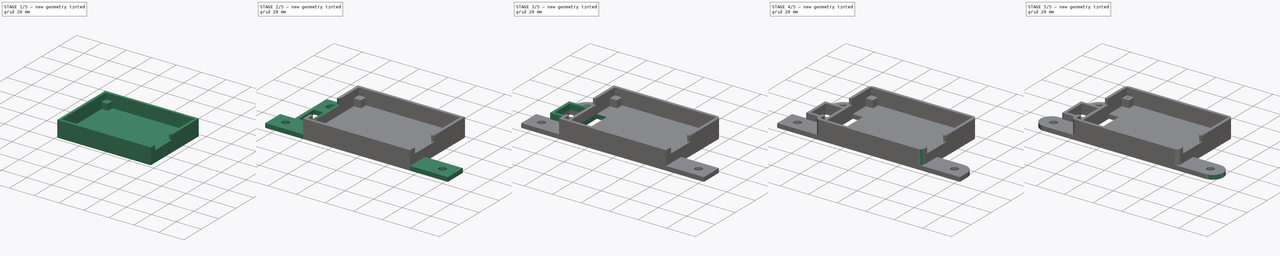
[diagram: build sequence overview — one tinted view per stage of 5, left to right]
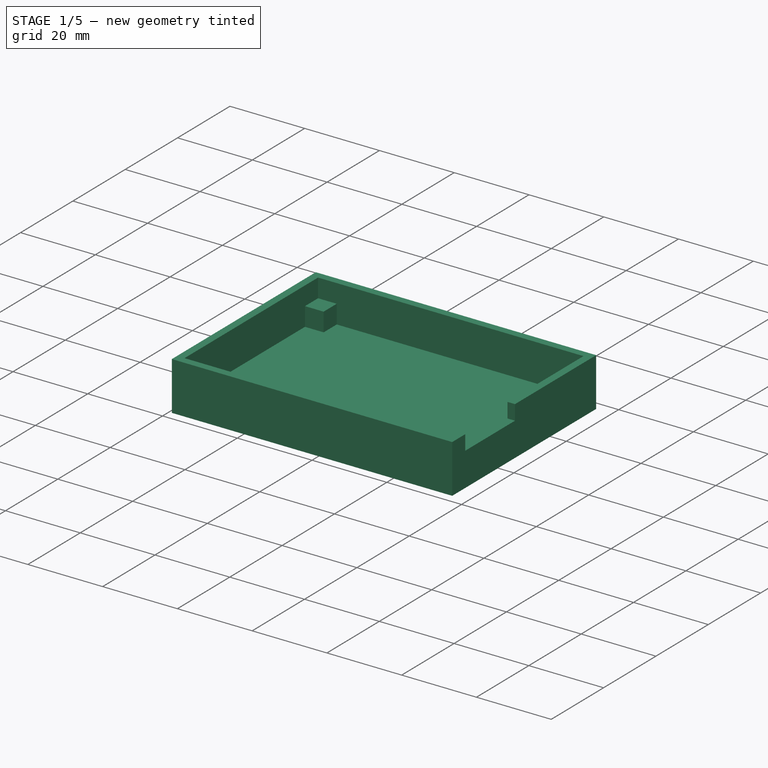
[diagram: stage 1 of 5 — iso view after this stage's code; geometry added in this stage tinted green]
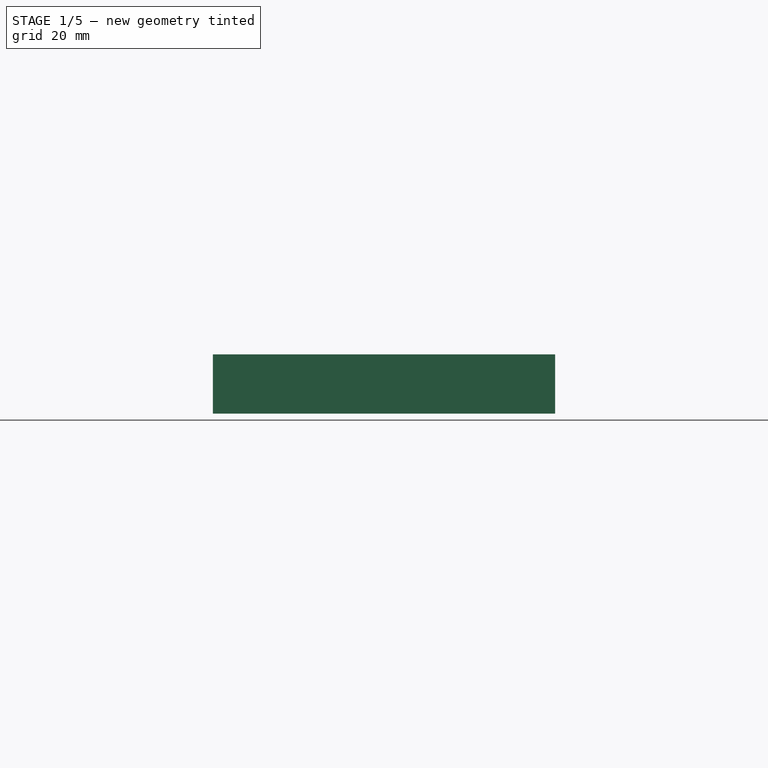
[diagram: stage 1 of 5 — front view after this stage's code; geometry added in this stage tinted green]
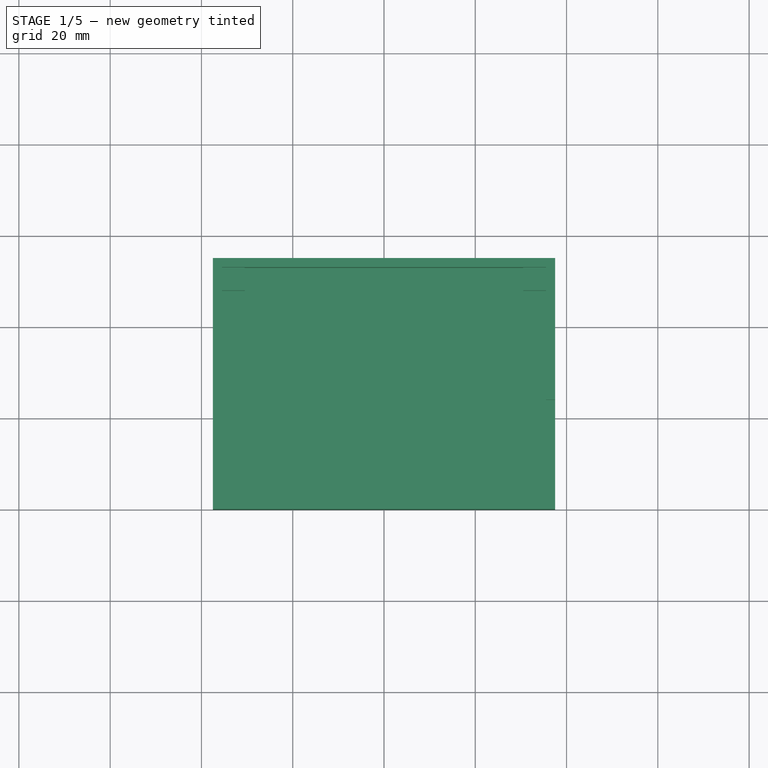
[diagram: stage 1 of 5 — top view after this stage's code; geometry added in this stage tinted green]
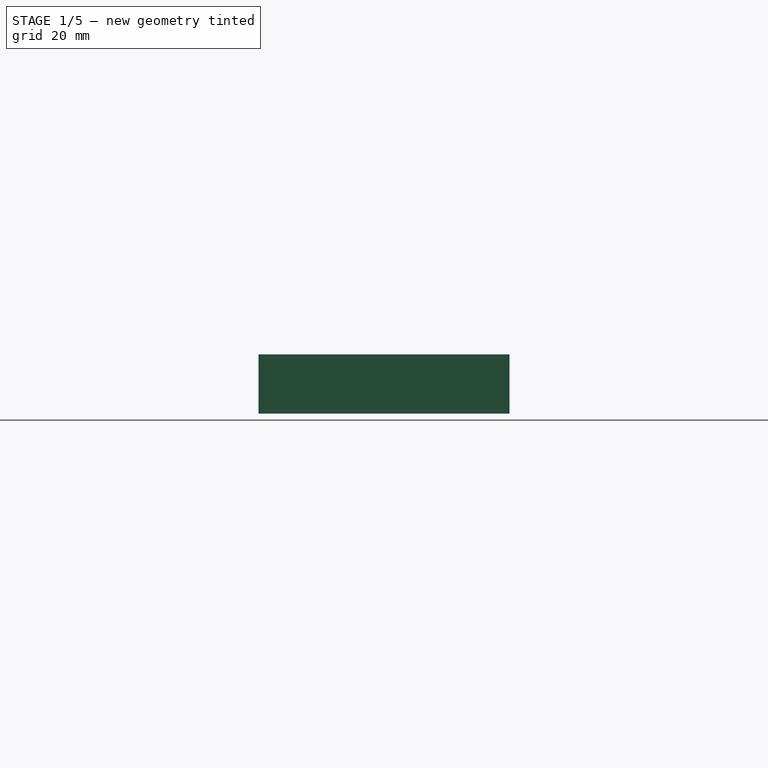
[diagram: stage 1 of 5 — right view after this stage's code; geometry added in this stage tinted green]
FCSTD DOCUMENT  (FreeCAD 0.18R16117 (Git))
Label: TCM2 - Scatola Circuiti
License: All rights reserved
LicenseURL: http://en.wikipedia.org/wiki/All_rights_reserved
objects: Sketcher::SketchObject×11, PartDesign::Fillet×9, PartDesign::Pad×6, PartDesign::Pocket×5, PartDesign::Body×1
note: 43 computed .brp shape members not serialized (recipe doc carries the construction recipe); baked Part::Feature solids carry a one-line shape summary decoded from their .brp

FEATURE [Sketcher::SketchObject] Sketch
  MapMode = 5
  Support = -> [XY_Plane]
  sketch-geometry (4):
    g0: LineSegment StartX=-37.5 StartY=55 StartZ=0 EndX=37.5 EndY=55 EndZ=0
    g1: LineSegment StartX=37.5 StartY=55 StartZ=0 EndX=37.5 EndY=0 EndZ=0
    g2: LineSegment StartX=37.5 StartY=0 StartZ=0 EndX=-37.5 EndY=0 EndZ=0
    g3: LineSegment StartX=-37.5 StartY=0 StartZ=0 EndX=-37.5 EndY=55 EndZ=0
  constraints (12):
    c: Coincident(g0,g1)
    c: Coincident(g1,g2)
    c: Coincident(g2,g3)
    c: Coincident(g3,g0)
    c: Horizontal(g0)
    c: Horizontal(g2)
    c: Vertical(g1)
    c: Vertical(g3)
    c: Distance(g2) = 75
    c: Distance(g1) = 55
    c: PointOnObject(g1,g-1)
    c: DistanceX(g2,g-1) = 37.5
FEATURE [PartDesign::Pad] Pad
  Length = 3
  Length2 = 100
  Profile = -> Sketch
  Type = 0
FEATURE [Sketcher::SketchObject] Sketch001
  MapMode = 5
  Placement = pos=(0,0,3) rot=(0,0,1;0rad)
  Support = -> [Pad]
  sketch-geometry (8):
    g0: LineSegment StartX=-37.5 StartY=55 StartZ=0 EndX=37.5 EndY=55 EndZ=0
    g1: LineSegment StartX=37.5 StartY=55 StartZ=0 EndX=37.5 EndY=0 EndZ=0
    g2: LineSegment StartX=37.5 StartY=0 StartZ=0 EndX=-37.5 EndY=0 EndZ=0
    g3: LineSegment StartX=-37.5 StartY=0 StartZ=0 EndX=-37.5 EndY=55 EndZ=0
    g4: LineSegment StartX=-35.5 StartY=53 StartZ=0 EndX=35.5 EndY=53 EndZ=0
    g5: LineSegment StartX=35.5 StartY=53 StartZ=0 EndX=35.5 EndY=2 EndZ=0
    g6: LineSegment StartX=35.5 StartY=2 StartZ=0 EndX=-35.5 EndY=2 EndZ=0
    g7: LineSegment StartX=-35.5 StartY=2 StartZ=0 EndX=-35.5 EndY=53 EndZ=0
  constraints (24):
    c: Coincident(g0,g1)
    c: Coincident(g1,g2)
    c: Coincident(g2,g3)
    c: Coincident(g3,g0)
    c: Horizontal(g0)
    c: Horizontal(g2)
    c: Vertical(g1)
    c: Vertical(g3)
    c: Coincident(g4,g5)
    c: Coincident(g5,g6)
    c: Coincident(g6,g7)
    c: Coincident(g7,g4)
    c: Horizontal(g4)
    c: Horizontal(g6)
    c: Vertical(g5)
    c: Vertical(g7)
    c: Distance(g1) = 55
    c: Distance(g2) = 75
    c: PointOnObject(g1,g-1)
    c: DistanceX(g2,g-1) = 37.5
    c: Distance(g6) = 71
    c: Distance(g5) = 51
    c: DistanceY(g1,g5) = 2
    c: DistanceX(g2,g6) = 2
FEATURE [PartDesign::Pad] Pad001
  BaseFeature = -> Pad
  Length = 10
  Length2 = 100
  Profile = -> Sketch001
  Type = 0
FEATURE [Sketcher::SketchObject] Sketch002
  MapMode = 5
  Placement = pos=(0,0,3) rot=(0,0,1;0rad)
  Support = -> [Pad001]
  sketch-geometry (16):
    g0: LineSegment StartX=-35.5 StartY=48 StartZ=0 EndX=-30.5 EndY=48 EndZ=0
    g1: LineSegment StartX=-30.5 StartY=48 StartZ=0 EndX=-30.5 EndY=53 EndZ=0
    g2: LineSegment StartX=-30.5 StartY=53 StartZ=0 EndX=-35.5 EndY=53 EndZ=0
    g3: LineSegment StartX=-35.5 StartY=53 StartZ=0 EndX=-35.5 EndY=48 EndZ=0
    g4: LineSegment StartX=30.5 StartY=48 StartZ=0 EndX=35.5 EndY=48 EndZ=0
    g5: LineSegment StartX=35.5 StartY=48 StartZ=0 EndX=35.5 EndY=53 EndZ=0
    g6: LineSegment StartX=35.5 StartY=53 StartZ=0 EndX=30.5 EndY=53 EndZ=0
    g7: LineSegment StartX=30.5 StartY=53 StartZ=0 EndX=30.5 EndY=48 EndZ=0
    g8: LineSegment StartX=30.5 StartY=2 StartZ=0 EndX=35.5 EndY=2 EndZ=0
    g9: LineSegment StartX=35.5 StartY=2 StartZ=0 EndX=35.5 EndY=7 EndZ=0
    g10: LineSegment StartX=35.5 StartY=7 StartZ=0 EndX=30.5 EndY=7 EndZ=0
    g11: LineSegment StartX=30.5 StartY=7 StartZ=0 EndX=30.5 EndY=2 EndZ=0
    g12: LineSegment StartX=-35.5 StartY=2 StartZ=0 EndX=-30.5 EndY=2 EndZ=0
    g13: LineSegment StartX=-30.5 StartY=2 StartZ=0 EndX=-30.5 EndY=7 EndZ=0
    g14: LineSegment StartX=-30.5 StartY=7 StartZ=0 EndX=-35.5 EndY=7 EndZ=0
    g15: LineSegment StartX=-35.5 StartY=7 StartZ=0 EndX=-35.5 EndY=2 EndZ=0
  constraints (48):
    c: Coincident(g0,g1)
    c: Coincident(g1,g2)
    c: Coincident(g2,g3)
    c: Coincident(g3,g0)
    c: Horizontal(g0)
    c: Horizontal(g2)
    c: Vertical(g1)
    c: Vertical(g3)
    c: Coincident(g4,g5)
    c: Coincident(g5,g6)
    c: Coincident(g6,g7)
    c: Coincident(g7,g4)
    c: Horizontal(g4)
    c: Horizontal(g6)
    c: Vertical(g5)
    c: Vertical(g7)
    c: Coincident(g8,g9)
    c: Coincident(g9,g10)
    c: Coincident(g10,g11)
    c: Coincident(g11,g8)
    c: Horizontal(g8)
    c: Horizontal(g10)
    c: Vertical(g9)
    c: Vertical(g11)
    c: Coincident(g12,g13)
    c: Coincident(g13,g14)
    c: Coincident(g14,g15)
    c: Coincident(g15,g12)
    c: Horizontal(g12)
    c: Horizontal(g14)
    c: Vertical(g13)
    c: Vertical(g15)
    c: Distance(g1) = 5
    c: Distance(g0) = 5
    c: Distance(g4) = 5
    c: Distance(g5) = 5
    c: Distance(g10) = 5
    c: Distance(g9) = 5
    c: Distance(g14) = 5
    c: Distance(g13) = 5
    c: DistanceX(g12,g8) = 71
    c: DistanceX(g2,g5) = 71
    c: DistanceY(g8,g5) = 51
    c: DistanceY(g12,g1) = 51
    c: DistanceX(g0,g-1) = 35.5
    c: DistanceX(g14,g-1) = 35.5
    c: DistanceY(g-1,g12) = 2
    c: DistanceY(g-1,g8) = 2
FEATURE [PartDesign::Pad] Pad002
  BaseFeature = -> Pad001
  Length = 5
  Length2 = 100
  Profile = -> Sketch002
  Type = 0
FEATURE [Sketcher::SketchObject] Sketch003
  MapMode = 5
  Placement = pos=(0,0,13) rot=(0,0,1;0rad)
  Support = -> [Pad002]
  sketch-geometry (4):
    g0: LineSegment StartX=35.5 StartY=24 StartZ=0 EndX=37.5 EndY=24 EndZ=0
    g1: LineSegment StartX=37.5 StartY=24 StartZ=0 EndX=37.5 EndY=5 EndZ=0
    g2: LineSegment StartX=37.5 StartY=5 StartZ=0 EndX=35.5 EndY=5 EndZ=0
    g3: LineSegment StartX=35.5 StartY=5 StartZ=0 EndX=35.5 EndY=24 EndZ=0
  constraints (12):
    c: Coincident(g0,g1)
    c: Coincident(g1,g2)
    c: Coincident(g2,g3)
    c: Coincident(g3,g0)
    c: Horizontal(g0)
    c: Horizontal(g2)
    c: Vertical(g1)
    c: Vertical(g3)
    c: Distance(g2) = 2
    c: Distance(g1) = 19
    c: DistanceX(g-1,g2) = 35.5
    c: DistanceY(g-1,g2) = 5
FEATURE [PartDesign::Pocket] Pocket
  BaseFeature = -> Pad002
  Length = 4
  Length2 = 100
  Profile = -> Sketch003
  Type = 0
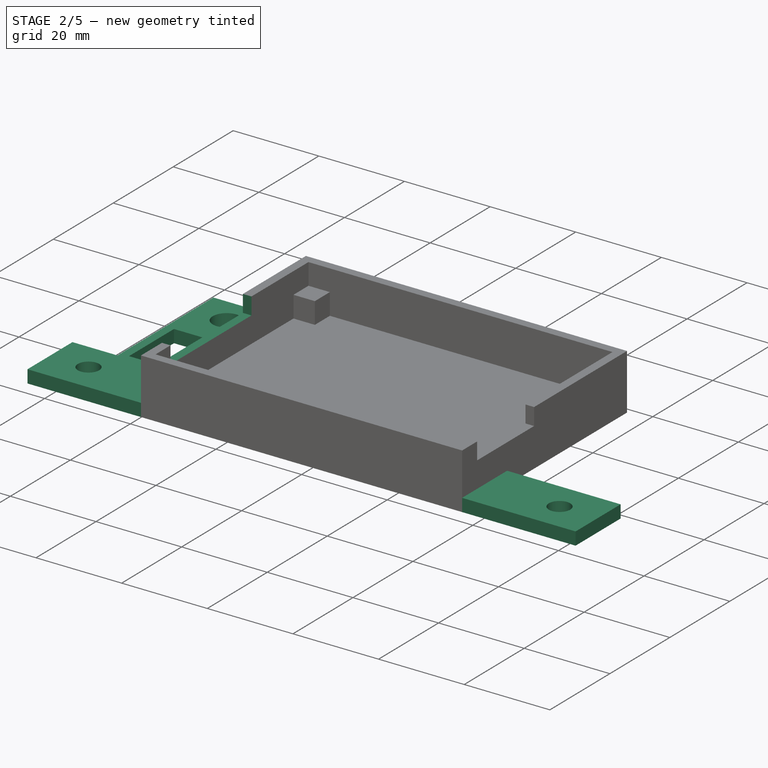
[diagram: stage 2 of 5 — iso view after this stage's code; geometry added in this stage tinted green]
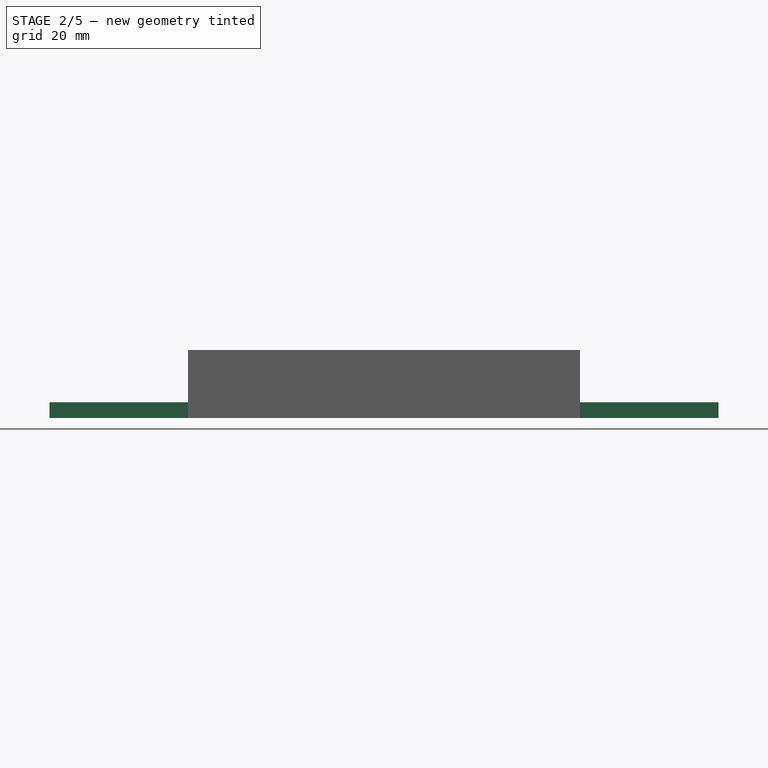
[diagram: stage 2 of 5 — front view after this stage's code; geometry added in this stage tinted green]
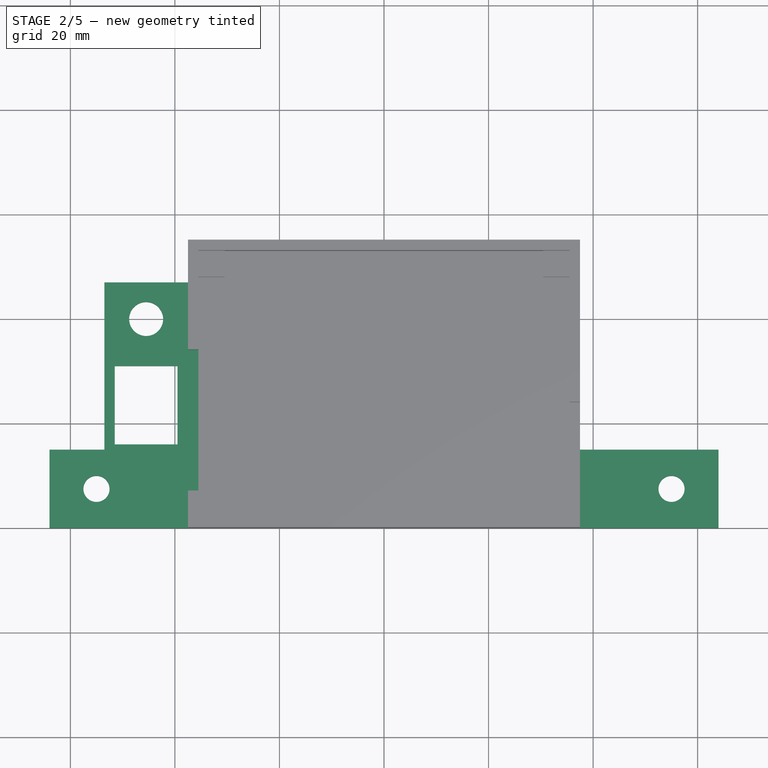
[diagram: stage 2 of 5 — top view after this stage's code; geometry added in this stage tinted green]
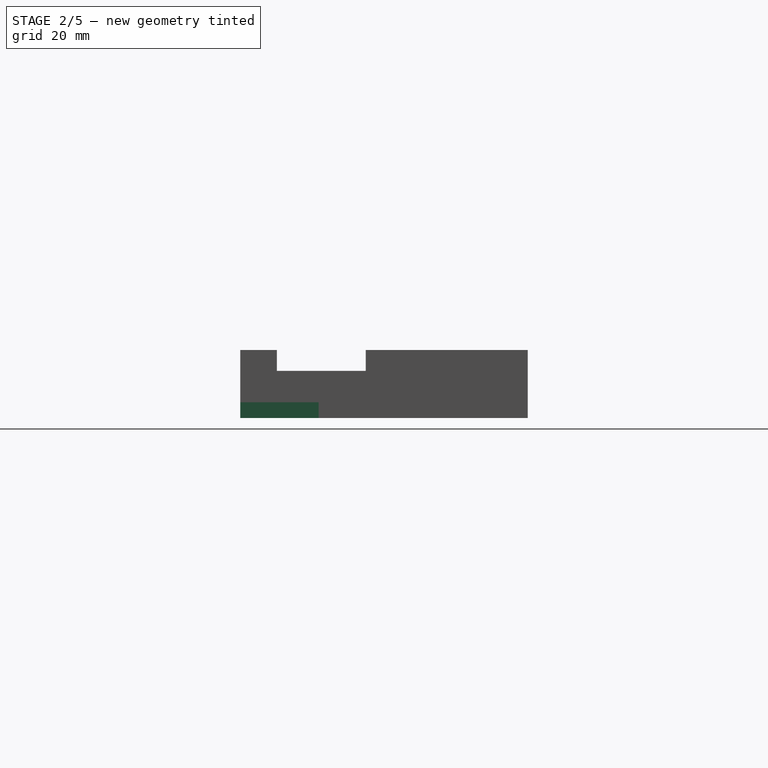
[diagram: stage 2 of 5 — right view after this stage's code; geometry added in this stage tinted green]
FEATURE [Sketcher::SketchObject] Sketch004
  MapMode = 5
  Placement = pos=(0,0,13) rot=(0,0,1;0rad)
  Support = -> [Pocket]
  sketch-geometry (4):
    g0: LineSegment StartX=-35.5 StartY=34 StartZ=0 EndX=-37.5 EndY=34 EndZ=0
    g1: LineSegment StartX=-37.5 StartY=34 StartZ=0 EndX=-37.5 EndY=7 EndZ=0
    g2: LineSegment StartX=-37.5 StartY=7 StartZ=0 EndX=-35.5 EndY=7 EndZ=0
    g3: LineSegment StartX=-35.5 StartY=7 StartZ=0 EndX=-35.5 EndY=34 EndZ=0
  constraints (12):
    c: Coincident(g0,g1)
    c: Coincident(g1,g2)
    c: Coincident(g2,g3)
    c: Coincident(g3,g0)
    c: Horizontal(g0)
    c: Horizontal(g2)
    c: Vertical(g1)
    c: Vertical(g3)
    c: Distance(g2) = 2
    c: Distance(g1) = 27
    c: DistanceX(g0,g-1) = 37.5
    c: DistanceY(g-1,g1) = 7
FEATURE [PartDesign::Pocket] Pocket001
  BaseFeature = -> Pocket
  Length = 4
  Length2 = 100
  Profile = -> Sketch004
  Type = 0
FEATURE [Sketcher::SketchObject] Sketch005
  MapMode = 5
  Placement = pos=(0,0,0) rot=(1,0,0;3.14159rad)
  Support = -> [Pocket001]
  sketch-geometry (4):
    g0: LineSegment StartX=-64 StartY=0 StartZ=0 EndX=64 EndY=0 EndZ=0
    g1: LineSegment StartX=64 StartY=0 StartZ=0 EndX=64 EndY=-15 EndZ=0
    g2: LineSegment StartX=64 StartY=-15 StartZ=0 EndX=-64 EndY=-15 EndZ=0
    g3: LineSegment StartX=-64 StartY=-15 StartZ=0 EndX=-64 EndY=0 EndZ=0
  constraints (12):
    c: Coincident(g0,g1)
    c: Coincident(g1,g2)
    c: Coincident(g2,g3)
    c: Coincident(g3,g0)
    c: Horizontal(g0)
    c: Horizontal(g2)
    c: Vertical(g1)
    c: Vertical(g3)
    c: PointOnObject(g0,g-1)
    c: Distance(g0) = 128
    c: DistanceX(g0,g-1) = 64
    c: Distance(g3) = 15
FEATURE [PartDesign::Pad] Pad003
  BaseFeature = -> Pocket001
  Length = 3
  Length2 = 100
  Profile = -> Sketch005
  Reversed = true
  Type = 0
FEATURE [Sketcher::SketchObject] Sketch006
  MapMode = 5
  Placement = pos=(0,0,3) rot=(0,0,1;0rad)
  Support = -> [Pad003]
  sketch-geometry (2):
    g0: Circle CenterX=-55 CenterY=7.5 CenterZ=0 NormalX=0 NormalY=0 NormalZ=1 AngleXU=0 Radius=2.5
    g1: Circle CenterX=55 CenterY=7.5 CenterZ=0 NormalX=0 NormalY=0 NormalZ=1 AngleXU=0 Radius=2.5
  constraints (6):
    c: DistanceX(g0,g1) = 110
    c: DistanceX(g0,g-1) = 55
    c: Radius(g0) = 2.5
    c: Radius(g1) = 2.5
    c: DistanceY(g-1,g0) = 7.5
    c: DistanceY(g-1,g1) = 7.5
FEATURE [PartDesign::Pocket] Pocket002
  BaseFeature = -> Pad003
  Length = 3
  Length2 = 100
  Profile = -> Sketch006
  Type = 0
FEATURE [Sketcher::SketchObject] Sketch007
  MapMode = 5
  Placement = pos=(0,0,0) rot=(1,0,0;3.14159rad)
  Support = -> [Pocket002]
  sketch-geometry (9):
    g0: LineSegment StartX=-53.5 StartY=-15 StartZ=0 EndX=-37.5 EndY=-15 EndZ=0
    g1: LineSegment StartX=-37.5 StartY=-15 StartZ=0 EndX=-37.5 EndY=-47 EndZ=0
    g2: LineSegment StartX=-37.5 StartY=-47 StartZ=0 EndX=-53.5 EndY=-47 EndZ=0
    g3: LineSegment StartX=-53.5 StartY=-47 StartZ=0 EndX=-53.5 EndY=-15 EndZ=0
    g4: LineSegment StartX=-51.5 StartY=-16 StartZ=0 EndX=-39.5 EndY=-16 EndZ=0
    g5: LineSegment StartX=-39.5 StartY=-16 StartZ=0 EndX=-39.5 EndY=-31 EndZ=0
    g6: LineSegment StartX=-39.5 StartY=-31 StartZ=0 EndX=-51.5 EndY=-31 EndZ=0
    g7: LineSegment StartX=-51.5 StartY=-31 StartZ=0 EndX=-51.5 EndY=-16 EndZ=0
    g8: Circle CenterX=-45.5 CenterY=-40 CenterZ=0 NormalX=0 NormalY=0 NormalZ=1 AngleXU=0 Radius=3.25
  constraints (27):
    c: Coincident(g0,g1)
    c: Coincident(g1,g2)
    c: Coincident(g2,g3)
    c: Coincident(g3,g0)
    c: Horizontal(g0)
    c: Horizontal(g2)
    c: Vertical(g1)
    c: Vertical(g3)
    c: Distance(g0) = 16
    c: Distance(g1) = 32
    c: Coincident(g4,g5)
    c: Coincident(g5,g6)
    c: Coincident(g6,g7)
    c: Coincident(g7,g4)
    c: Horizontal(g4)
    c: Horizontal(g6)
    c: Vertical(g5)
    c: Vertical(g7)
    c: Distance(g4) = 12
    c: Distance(g5) = 15
    c: DistanceX(g0,g4) = 2
    c: DistanceY(g4,g0) = 1
    c: Diameter(g8) = 6.5
    c: DistanceX(g0,g8) = 8
    c: DistanceY(g8,g0) = 25
    c: DistanceX(g0,g-1) = 37.5
    c: DistanceY(g0,g-1) = 15
FEATURE [PartDesign::Pad] Pad004
  BaseFeature = -> Pocket002
  Length = 3
  Length2 = 100
  Profile = -> Sketch007
  Reversed = true
  Type = 0
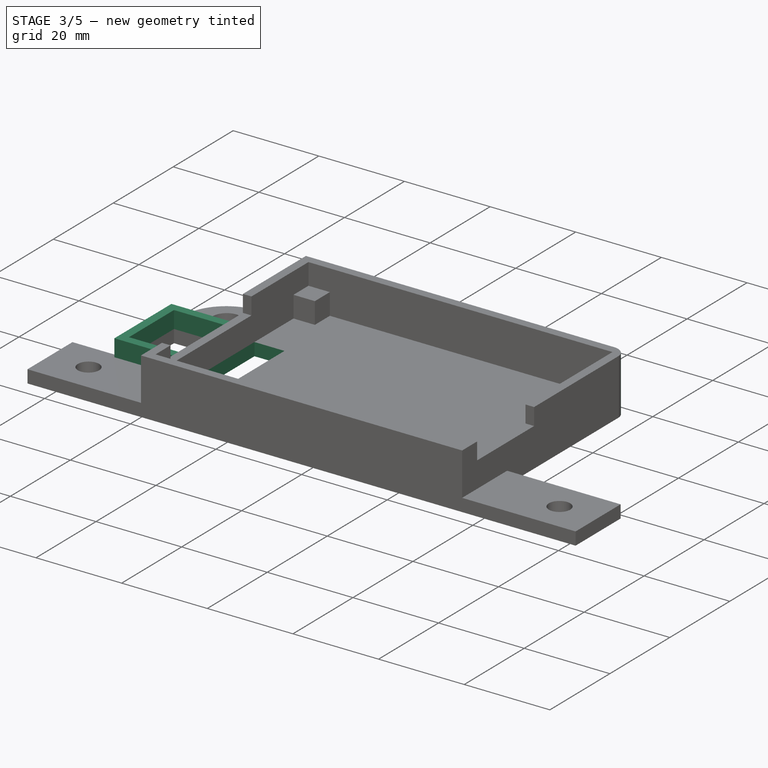
[diagram: stage 3 of 5 — iso view after this stage's code; geometry added in this stage tinted green]
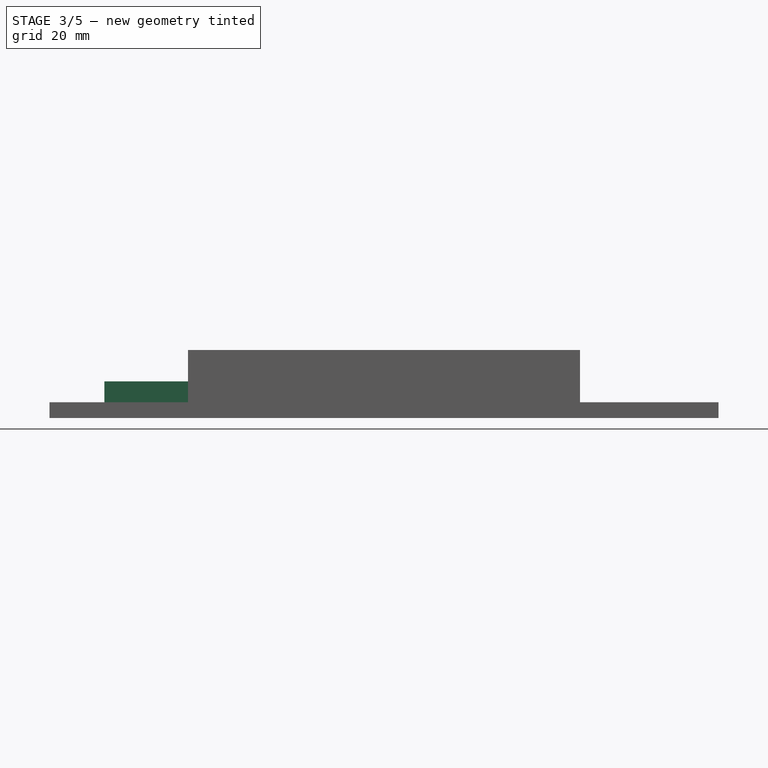
[diagram: stage 3 of 5 — front view after this stage's code; geometry added in this stage tinted green]
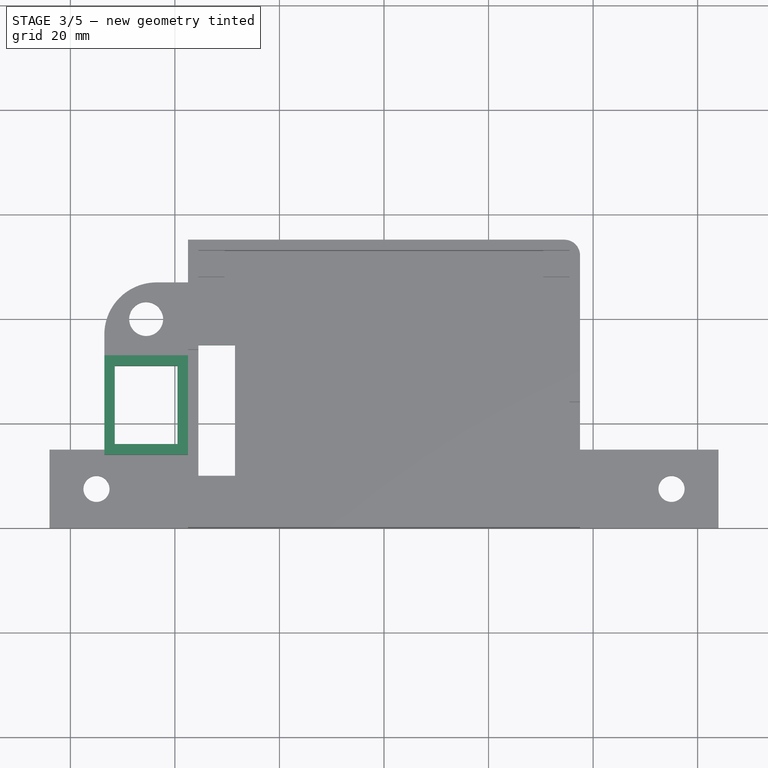
[diagram: stage 3 of 5 — top view after this stage's code; geometry added in this stage tinted green]
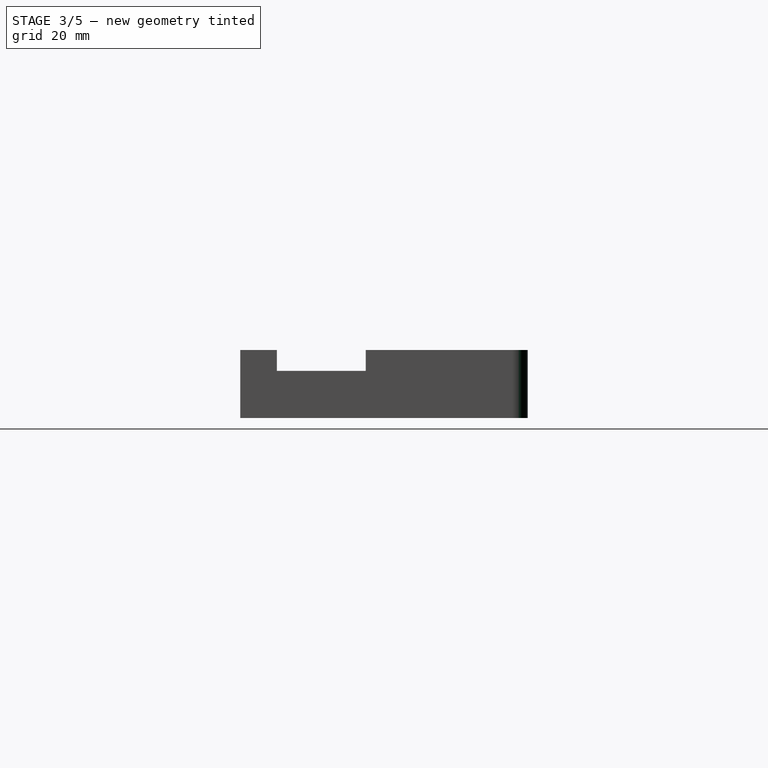
[diagram: stage 3 of 5 — right view after this stage's code; geometry added in this stage tinted green]
FEATURE [Sketcher::SketchObject] Sketch009
  MapMode = 5
  Placement = pos=(0,0,3) rot=(0,0,1;0rad)
  Support = -> [Pad004]
  sketch-geometry (8):
    g0: LineSegment StartX=-53.5 StartY=33 StartZ=0 EndX=-37.5 EndY=33 EndZ=0
    g1: LineSegment StartX=-37.5 StartY=33 StartZ=0 EndX=-37.5 EndY=14 EndZ=0
    g2: LineSegment StartX=-37.5 StartY=14 StartZ=0 EndX=-53.5 EndY=14 EndZ=0
    g3: LineSegment StartX=-53.5 StartY=14 StartZ=0 EndX=-53.5 EndY=33 EndZ=0
    g4: LineSegment StartX=-51.5 StartY=31 StartZ=0 EndX=-39.5 EndY=31 EndZ=0
    g5: LineSegment StartX=-39.5 StartY=31 StartZ=0 EndX=-39.5 EndY=16 EndZ=0
    g6: LineSegment StartX=-39.5 StartY=16 StartZ=0 EndX=-51.5 EndY=16 EndZ=0
    g7: LineSegment StartX=-51.5 StartY=16 StartZ=0 EndX=-51.5 EndY=31 EndZ=0
  constraints (24):
    c: Coincident(g0,g1)
    c: Coincident(g1,g2)
    c: Coincident(g2,g3)
    c: Coincident(g3,g0)
    c: Horizontal(g0)
    c: Horizontal(g2)
    c: Vertical(g1)
    c: Vertical(g3)
    c: Coincident(g4,g5)
    c: Coincident(g5,g6)
    c: Coincident(g6,g7)
    c: Coincident(g7,g4)
    c: Horizontal(g4)
    c: Horizontal(g6)
    c: Vertical(g5)
    c: Vertical(g7)
    c: Distance(g5) = 15
    c: Distance(g6) = 12
    c: DistanceY(g1,g5) = 2
    c: DistanceX(g2,g6) = 2
    c: DistanceX(g4,g0) = 2
    c: DistanceY(g4,g0) = 2
    c: DistanceX(g0,g-1) = 37.5
    c: DistanceY(g-1,g5) = 16
FEATURE [Sketcher::SketchObject] Sketch010
  MapMode = 5
  Placement = pos=(0,0,3) rot=(0,0,1;0rad)
  Support = -> [Pad004]
  sketch-geometry (4):
    g0: LineSegment StartX=-35.5 StartY=35 StartZ=0 EndX=-28.5 EndY=35 EndZ=0
    g1: LineSegment StartX=-28.5 StartY=35 StartZ=0 EndX=-28.5 EndY=10 EndZ=0
    g2: LineSegment StartX=-28.5 StartY=10 StartZ=0 EndX=-35.5 EndY=10 EndZ=0
    g3: LineSegment StartX=-35.5 StartY=10 StartZ=0 EndX=-35.5 EndY=35 EndZ=0
  constraints (12):
    c: Coincident(g0,g1)
    c: Coincident(g1,g2)
    c: Coincident(g2,g3)
    c: Coincident(g3,g0)
    c: Horizontal(g0)
    c: Horizontal(g2)
    c: Vertical(g1)
    c: Vertical(g3)
    c: DistanceX(g0,g-1) = 35.5
    c: Distance(g0) = 7
    c: DistanceY(g-1,g1) = 10
    c: Distance(g1) = 25
FEATURE [PartDesign::Pocket] Pocket003
  BaseFeature = -> Pad004
  Length = 3
  Length2 = 100
  Profile = -> Sketch010
  Type = 0
FEATURE [PartDesign::Pad] Pad005
  BaseFeature = -> Pocket003
  Length = 4
  Length2 = 100
  Profile = -> Sketch009
  Type = 0
FEATURE [PartDesign::Fillet] Fillet
  Base = -> Pad005 [Edge31]
  BaseFeature = -> Pad005
  Radius = 10
FEATURE [PartDesign::Fillet] Fillet001
  Base = -> Fillet [Edge96]
  BaseFeature = -> Fillet
  Radius = 3
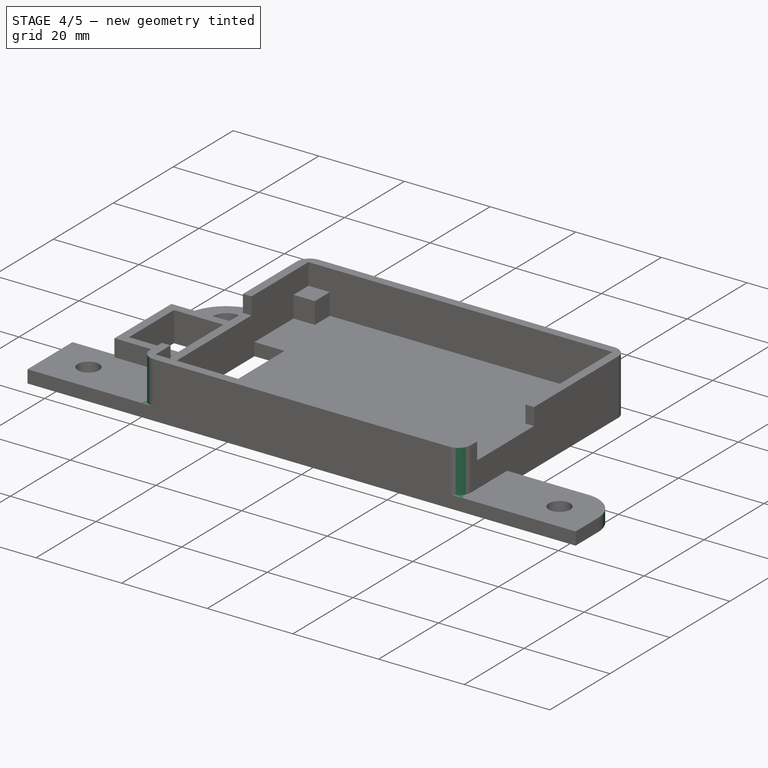
[diagram: stage 4 of 5 — iso view after this stage's code; geometry added in this stage tinted green]
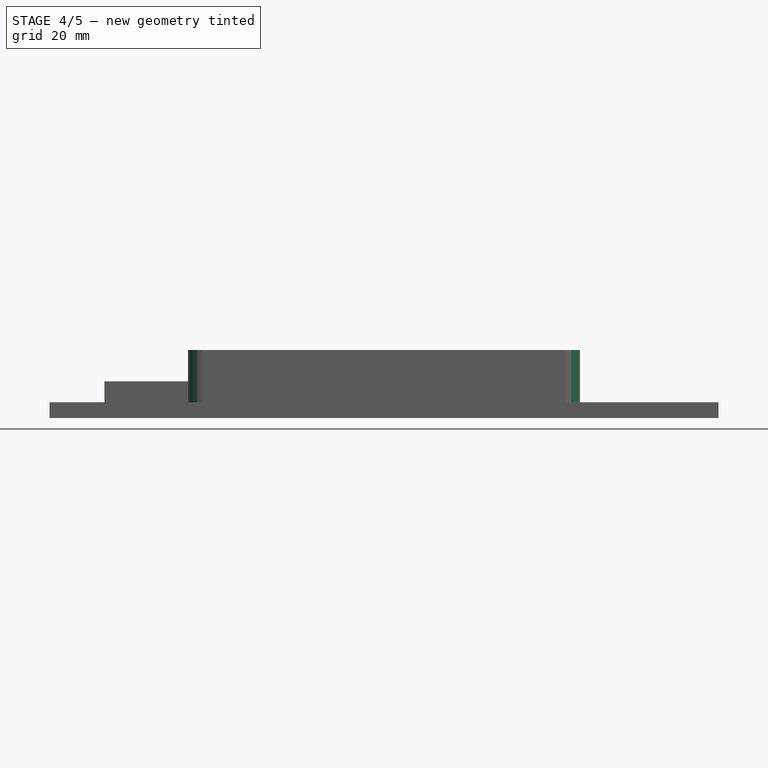
[diagram: stage 4 of 5 — front view after this stage's code; geometry added in this stage tinted green]
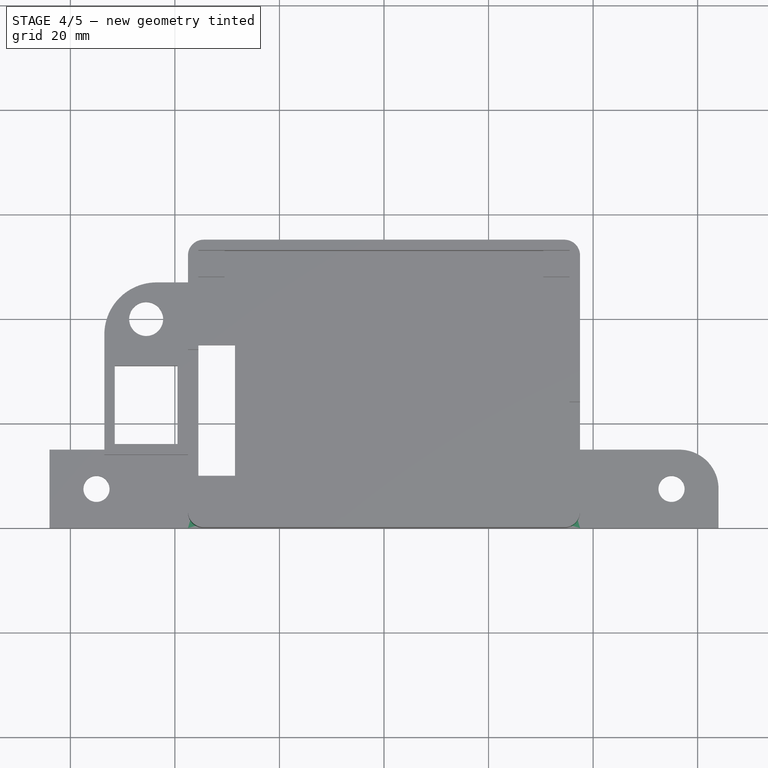
[diagram: stage 4 of 5 — top view after this stage's code; geometry added in this stage tinted green]
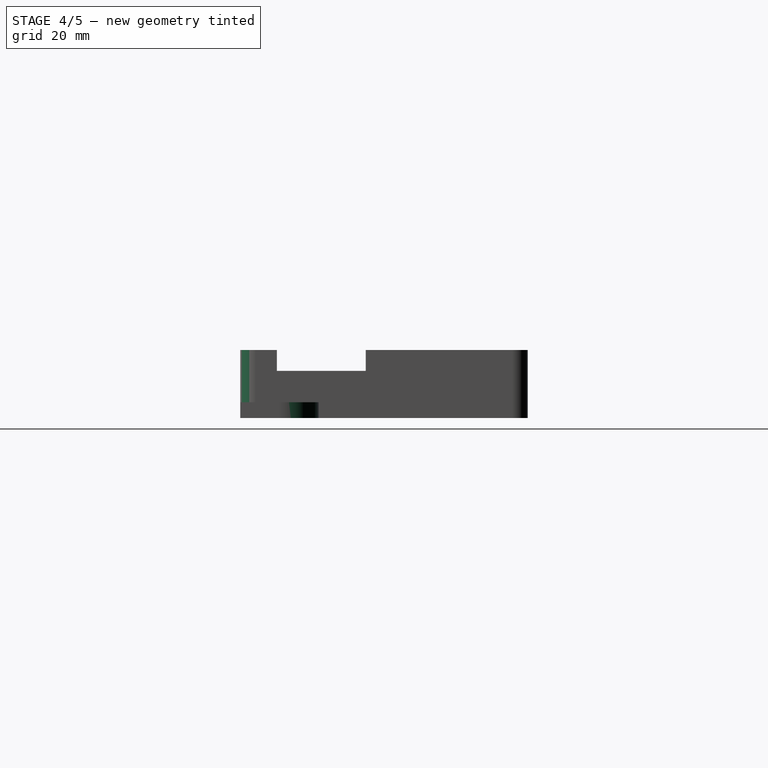
[diagram: stage 4 of 5 — right view after this stage's code; geometry added in this stage tinted green]
FEATURE [PartDesign::Fillet] Fillet002
  Base = -> Fillet001 [Edge68]
  BaseFeature = -> Fillet001
  Radius = 3
FEATURE [PartDesign::Fillet] Fillet003
  Base = -> Fillet002 [Edge66]
  BaseFeature = -> Fillet002
  Radius = 3
FEATURE [PartDesign::Fillet] Fillet004
  Base = -> Fillet003 [Edge65]
  BaseFeature = -> Fillet003
  Radius = 3
FEATURE [PartDesign::Fillet] Fillet005
  Base = -> Fillet004 [Edge151]
  BaseFeature = -> Fillet004
  Radius = 7.5
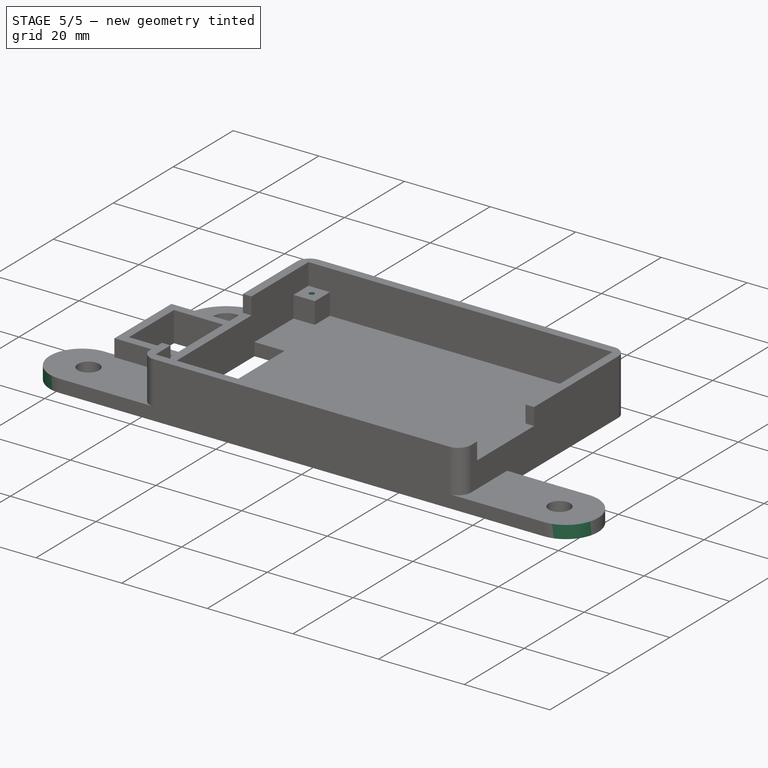
[diagram: stage 5 of 5 — iso view after this stage's code; geometry added in this stage tinted green]
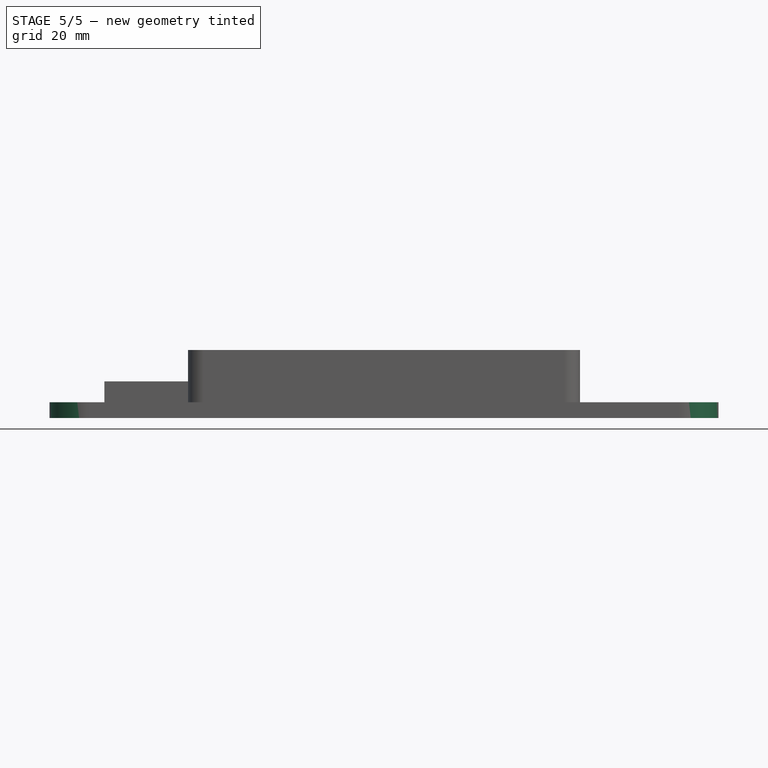
[diagram: stage 5 of 5 — front view after this stage's code; geometry added in this stage tinted green]
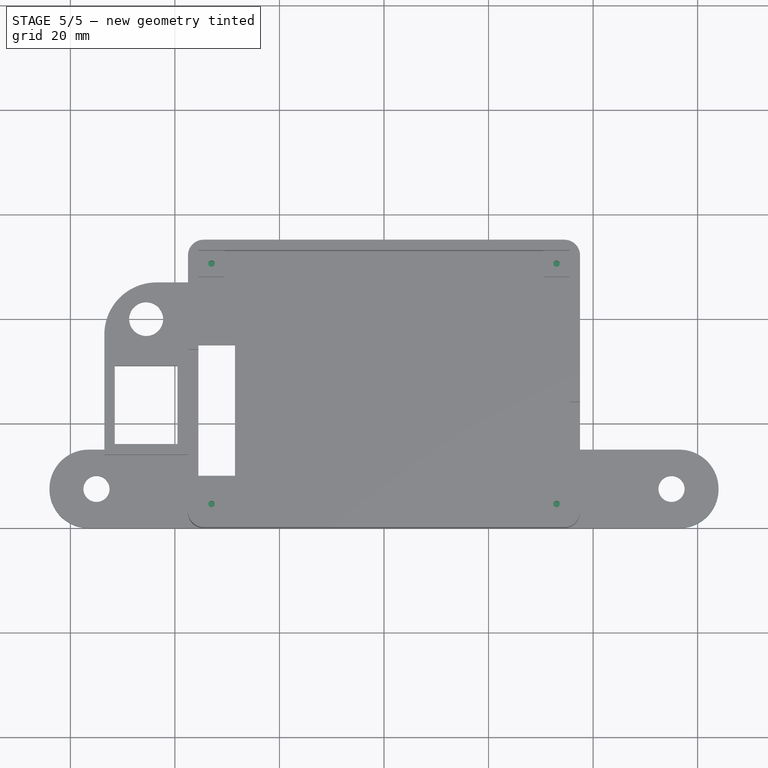
[diagram: stage 5 of 5 — top view after this stage's code; geometry added in this stage tinted green]
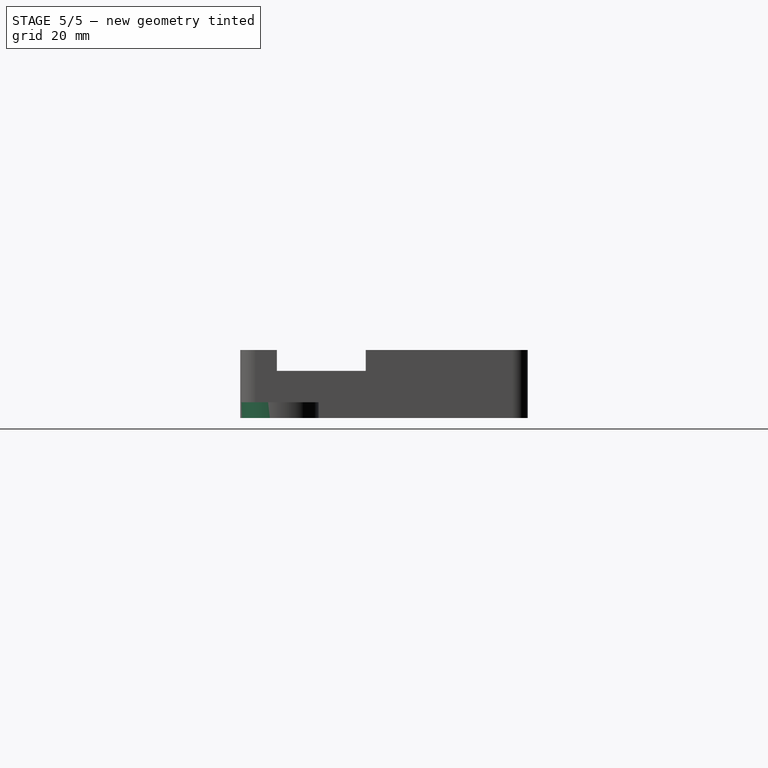
[diagram: stage 5 of 5 — right view after this stage's code; geometry added in this stage tinted green]
FEATURE [PartDesign::Fillet] Fillet006
  Base = -> Fillet005 [Edge10]
  BaseFeature = -> Fillet005
  Radius = 7.49
FEATURE [PartDesign::Fillet] Fillet007
  Base = -> Fillet006 [Edge51]
  BaseFeature = -> Fillet006
  Radius = 7.49
FEATURE [PartDesign::Fillet] Fillet008
  Base = -> Fillet007 [Edge12]
  BaseFeature = -> Fillet007
  Radius = 7.5
FEATURE [Sketcher::SketchObject] Sketch011
  MapMode = 5
  Placement = pos=(0,0,8) rot=(0,0,1;0rad)
  Support = -> [Fillet008]
  sketch-geometry (4):
    g0: Circle CenterX=-33 CenterY=4.5 CenterZ=0 NormalX=0 NormalY=0 NormalZ=1 AngleXU=0 Radius=0.6
    g1: Circle CenterX=33 CenterY=4.5 CenterZ=0 NormalX=0 NormalY=0 NormalZ=1 AngleXU=0 Radius=0.6
    g2: Circle CenterX=-33 CenterY=50.5 CenterZ=0 NormalX=0 NormalY=0 NormalZ=1 AngleXU=0 Radius=0.6
    g3: Circle CenterX=33 CenterY=50.5 CenterZ=0 NormalX=0 NormalY=0 NormalZ=1 AngleXU=0 Radius=0.6
  constraints (12):
    c: Diameter(g2) = 1.2
    c: Diameter(g3) = 1.2
    c: Diameter(g1) = 1.2
    c: Diameter(g0) = 1.2
    c: DistanceX(g0,g1) = 66
    c: DistanceY(g1,g3) = 46
    c: DistanceX(g2,g3) = 66
    c: DistanceY(g0,g2) = 46
    c: DistanceY(g-1,g1) = 4.5
    c: DistanceY(g-1,g0) = 4.5
    c: DistanceX(g0,g-1) = 33
    c: DistanceX(g2,g-1) = 33
FEATURE [PartDesign::Pocket] Pocket004
  BaseFeature = -> Fillet008
  Length = 5
  Length2 = 100
  Profile = -> Sketch011
  Type = 0
FEATURE [PartDesign::Body] Body
  Group = -> [Sketch,Pad,Sketch001,Pad001,Sketch002,Pad002,Sketch003,Pocket,Sketch004,Pocket001,Sketch005,Pad003,Sketch006,Pocket002,Sketch007,Pad004,Sketch009,Sketch010,Pocket003,Pad005,Fillet,Fillet001,Fillet002,Fillet003,Fillet004,Fillet005,Fillet006,Fillet007,Fillet008,Sketch011,Pocket004]
  Origin = -> Origin
  Tip = -> Pocket004
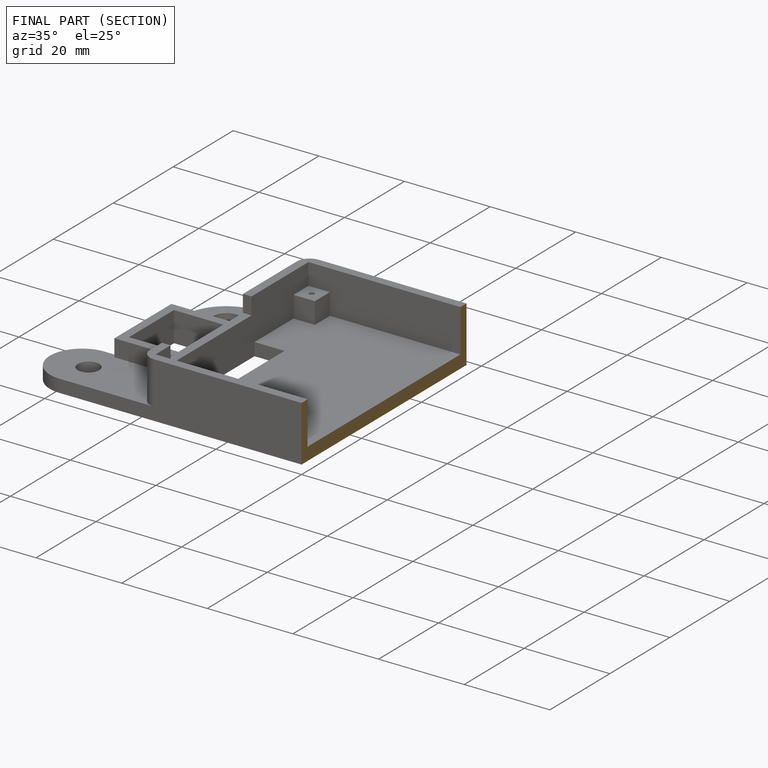
[diagram: finished part — half-section view (interior)]
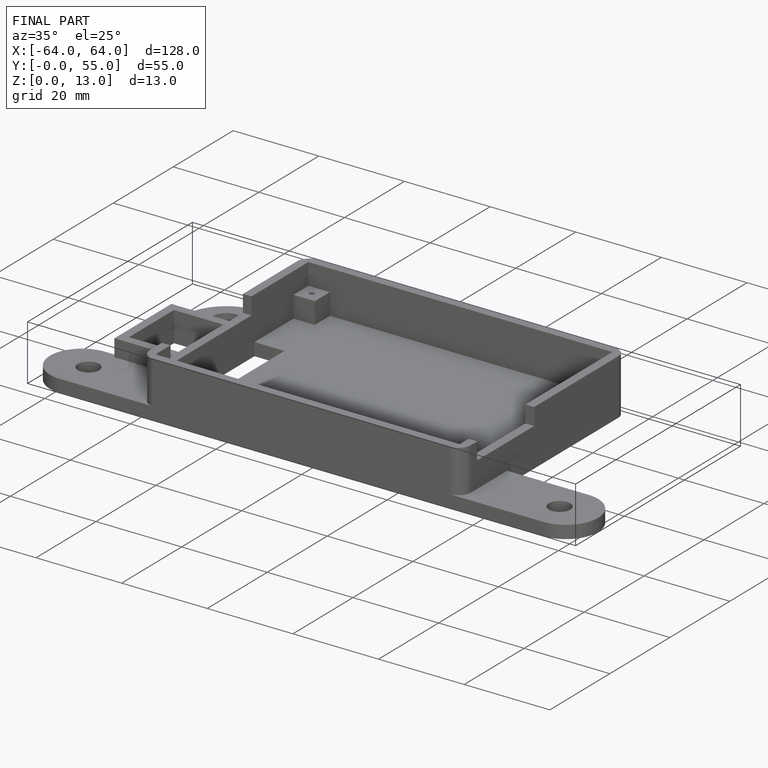
[diagram: finished part — iso view with bounding-box wireframe]
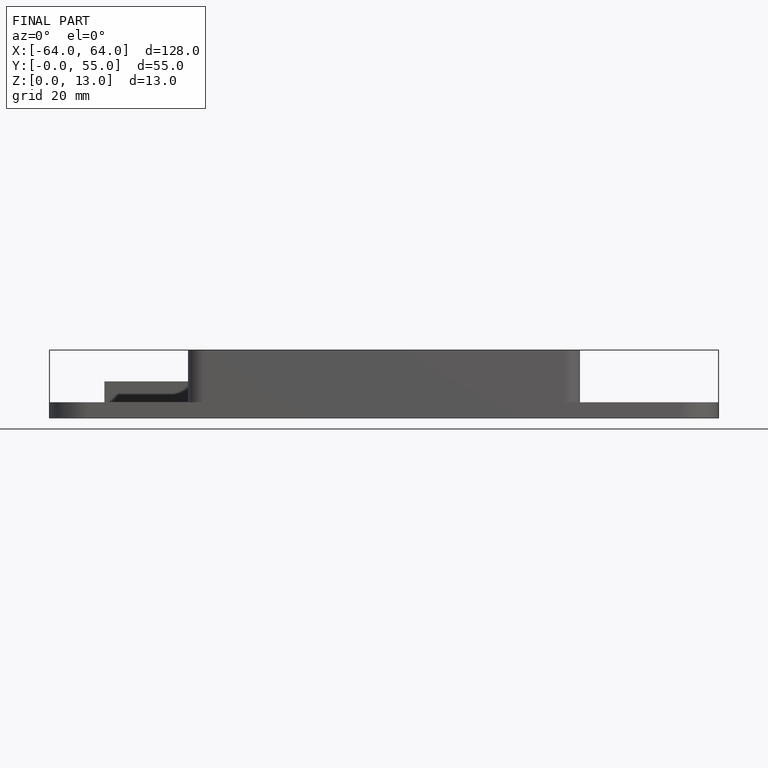
[diagram: finished part — front view with bounding-box wireframe]
